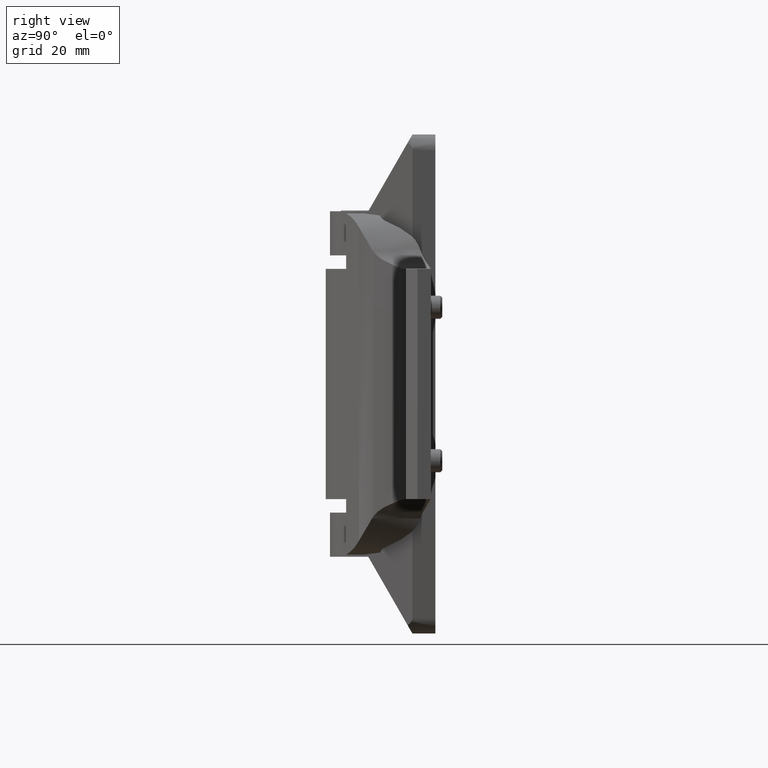
[diagram: clean part render]
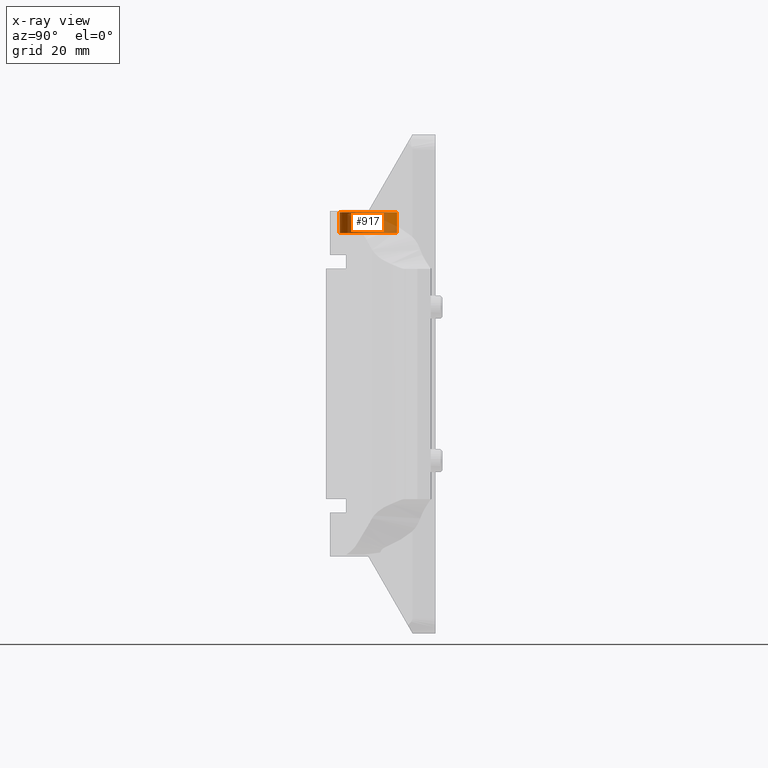
[diagram: x-ray — body ghosted, one internal face saturated and labeled with its STEP entity id]
A machine part, right view, then the same camera in x-ray: the body is ghosted and one INTERNAL B-rep face — a face not visible from any outside direction — is saturated and labeled: STEP entity #917.
In plain terms, the highlighted face is a freeform B-spline surface patch.
Its self-contained STEP definition (entity closure, byte-faithful):
#592=CARTESIAN_POINT('',(-7.500000356230728,2.273737E-013,44.749986644835651));
#593=VERTEX_POINT('',#592);
#594=CARTESIAN_POINT('',(-0.930960060336503,-7.441996957168399,44.749986644769912));
#595=VERTEX_POINT('',#594);
#596=CARTESIAN_POINT('',(-7.500000356230728,2.273737E-013,44.749986644835651));
#597=CARTESIAN_POINT('',(-7.500000356230727,-6.620239814653774,44.749986644835651));
#598=CARTESIAN_POINT('',(-0.930960060336503,-7.441996957168399,44.749986644769919));
#606=(BOUNDED_CURVE()B_SPLINE_CURVE(2,(#596,#597,#598),.UNSPECIFIED.,.F.,.U.)B_SPLINE_CURVE_WITH_KNOTS((3,3),(0.0,0.228526071006114),.UNSPECIFIED.)CURVE()GEOMETRIC_REPRESENTATION_ITEM()RATIONAL_B_SPLINE_CURVE((1.0,0.732265053920910,0.954005430229727))REPRESENTATION_ITEM(''));
#607=EDGE_CURVE('',#593,#595,#606,.T.);
#655=CARTESIAN_POINT('',(-0.065449019747807,7.499714779195314,44.749986644835637));
#656=VERTEX_POINT('',#655);
#672=CARTESIAN_POINT('',(-0.065449019747807,7.499714779195314,44.749986644835644));
#673=CARTESIAN_POINT('',(-7.500000356230728,7.434834431802169,44.749986644835644));
#674=CARTESIAN_POINT('',(-7.500000356230728,2.273737E-013,44.749986644835651));
#682=(BOUNDED_CURVE()B_SPLINE_CURVE(2,(#672,#673,#674),.UNSPECIFIED.,.F.,.U.)B_SPLINE_CURVE_WITH_KNOTS((3,3),(0.751539894353846,1.0),.UNSPECIFIED.)CURVE()GEOMETRIC_REPRESENTATION_ITEM()RATIONAL_B_SPLINE_CURVE((0.996414028056761,0.708910879642270,1.0))REPRESENTATION_ITEM(''));
#683=EDGE_CURVE('',#656,#593,#682,.T.);
#710=CARTESIAN_POINT('',(0.930960060092824,-7.441996957132677,44.749986644835637));
#711=VERTEX_POINT('',#710);
#712=CARTESIAN_POINT('',(-0.930960060336503,-7.441996957168399,44.749986644769912));
#713=CARTESIAN_POINT('',(-0.467286979213532,-7.500000356230643,44.749986644835658));
#714=CARTESIAN_POINT('',(1.421085E-013,-7.500000356230643,44.749986644835651));
#715=CARTESIAN_POINT('',(0.467286978975246,-7.500000356230644,44.749986644835651));
#716=CARTESIAN_POINT('',(0.930960060092824,-7.441996957132677,44.749986644835644));
#724=(BOUNDED_CURVE()B_SPLINE_CURVE(2,(#712,#713,#714,#715,#716),.UNSPECIFIED.,.F.,.U.)B_SPLINE_CURVE_WITH_KNOTS((3,2,3),(0.228526071006114,0.250000000000000,0.271473928983198),.UNSPECIFIED.)CURVE()GEOMETRIC_REPRESENTATION_ITEM()RATIONAL_B_SPLINE_CURVE((0.954005430229727,0.974841727265637,1.0,0.974841727278159,0.954005430250467))REPRESENTATION_ITEM(''));
#725=EDGE_CURVE('',#595,#711,#724,.T.);
#810=CARTESIAN_POINT('',(0.930960059949661,-7.441996957150586,39.249986644835701));
#811=VERTEX_POINT('',#810);
#825=CARTESIAN_POINT('',(-0.065449019702829,7.499714779195705,39.249986644835701));
#826=VERTEX_POINT('',#825);
#842=CARTESIAN_POINT('',(-0.065449019702829,7.499714779195705,39.249986644835701));
#843=CARTESIAN_POINT('',(-0.065449019747807,7.499714779195314,44.749986644835637));
#844=QUASI_UNIFORM_CURVE('',1,(#842,#843),.UNSPECIFIED.,.F.,.U.);
#845=EDGE_CURVE('',#826,#656,#844,.T.);
#850=CARTESIAN_POINT('',(0.930960059949661,-7.441996957150586,39.249986644835701));
#851=CARTESIAN_POINT('',(0.930960060092824,-7.441996957132677,44.749986644835637));
#852=QUASI_UNIFORM_CURVE('',1,(#850,#851),.UNSPECIFIED.,.F.,.U.);
#853=EDGE_CURVE('',#811,#711,#852,.T.);
#858=CARTESIAN_POINT('',(-0.065449019346323,7.499714779198816,39.112486644835698));
#859=CARTESIAN_POINT('',(-7.565163798544912,7.434265759852350,39.112486644835698));
#860=CARTESIAN_POINT('',(-7.499714779198446,-0.065449019346238,39.112486644835698));
#861=CARTESIAN_POINT('',(-7.434265759851980,-7.565163798544827,39.112486644835698));
#862=CARTESIAN_POINT('',(0.065449019346608,-7.499714779198361,39.112486644835698));
#863=CARTESIAN_POINT('',(0.499876215929288,-7.495923590489074,39.112486644835698));
#864=CARTESIAN_POINT('',(0.930960059817088,-7.441996957167169,39.112486644835705));
#865=CARTESIAN_POINT('',(-0.065449019346323,7.499714779198816,44.890924144835658));
#866=CARTESIAN_POINT('',(-7.565163798544912,7.434265759852350,44.890924144835651));
#867=CARTESIAN_POINT('',(-7.499714779198446,-0.065449019346238,44.890924144835658));
#868=CARTESIAN_POINT('',(-7.434265759851980,-7.565163798544827,44.890924144835651));
#869=CARTESIAN_POINT('',(0.065449019346608,-7.499714779198361,44.890924144835658));
#870=CARTESIAN_POINT('',(0.499876215929288,-7.495923590489074,44.890924144835651));
#871=CARTESIAN_POINT('',(0.930960059817088,-7.441996957167169,44.890924144835658));
#879=(BOUNDED_SURFACE()B_SPLINE_SURFACE(2,1,((#858,#865),(#859,#866),(#860,#867),(#861,#868),(#862,#869),(#863,#870),(#864,#871)),.UNSPECIFIED.,.F.,.F.,.U.)B_SPLINE_SURFACE_WITH_KNOTS((3,2,2,3),(2,2),(0.0,12.426407461415479,24.852814922830959,25.846927519744199),(0.0,5.778437499999966),.UNSPECIFIED.)GEOMETRIC_REPRESENTATION_ITEM()RATIONAL_B_SPLINE_SURFACE(((1.0,1.0),(0.707106781186548,0.707106781186548),(1.0,1.0),(0.707106781186548,0.707106781186548),(1.0,1.0),(0.976568542494924,0.976568542494924),(0.956886118190660,0.956886118190660)))REPRESENTATION_ITEM('')SURFACE());
#880=CARTESIAN_POINT('',(-7.500000356230728,2.273737E-013,39.249986644835701));
#881=VERTEX_POINT('',#880);
#882=CARTESIAN_POINT('',(0.930960059949661,-7.441996957150586,39.249986644835701));
#883=CARTESIAN_POINT('',(0.467286978830414,-7.500000356230644,39.249986644835708));
#884=CARTESIAN_POINT('',(1.421085E-013,-7.500000356230643,39.249986644835701));
#885=CARTESIAN_POINT('',(-7.500000356230728,-7.500000356230642,39.249986644835701));
#886=CARTESIAN_POINT('',(-7.500000356230728,2.273737E-013,39.249986644835701));
#894=(BOUNDED_CURVE()B_SPLINE_CURVE(2,(#882,#883,#884,#885,#886),.UNSPECIFIED.,.F.,.U.)B_SPLINE_CURVE_WITH_KNOTS((3,2,3),(0.228526071023290,0.250000000000000,0.500000000000000),.UNSPECIFIED.)CURVE()GEOMETRIC_REPRESENTATION_ITEM()RATIONAL_B_SPLINE_CURVE((0.954005430263058,0.974841727285760,1.0,0.707106781186547,1.0))REPRESENTATION_ITEM(''));
#895=EDGE_CURVE('',#811,#881,#894,.T.);
#896=ORIENTED_EDGE('',*,*,#895,.F.);
#897=ORIENTED_EDGE('',*,*,#853,.T.);
#898=ORIENTED_EDGE('',*,*,#725,.F.);
#899=ORIENTED_EDGE('',*,*,#607,.F.);
#900=ORIENTED_EDGE('',*,*,#683,.F.);
#901=ORIENTED_EDGE('',*,*,#845,.F.);
#902=CARTESIAN_POINT('',(-7.500000356230728,2.273737E-013,39.249986644835701));
#903=CARTESIAN_POINT('',(-7.500000356230727,7.434834431891368,39.249986644835694));
#904=CARTESIAN_POINT('',(-0.065449019702829,7.499714779195705,39.249986644835708));
#912=(BOUNDED_CURVE()B_SPLINE_CURVE(2,(#902,#903,#904),.UNSPECIFIED.,.F.,.U.)B_SPLINE_CURVE_WITH_KNOTS((3,3),(0.500000000000000,0.748460105648267),.UNSPECIFIED.)CURVE()GEOMETRIC_REPRESENTATION_ITEM()RATIONAL_B_SPLINE_CURVE((1.0,0.708910879639794,0.996414028061651))REPRESENTATION_ITEM(''));
#913=EDGE_CURVE('',#881,#826,#912,.T.);
#914=ORIENTED_EDGE('',*,*,#913,.F.);
#915=EDGE_LOOP('',(#896,#897,#898,#899,#900,#901,#914));
#916=FACE_OUTER_BOUND('',#915,.T.);
#917=ADVANCED_FACE('',(#916),#879,.T.);